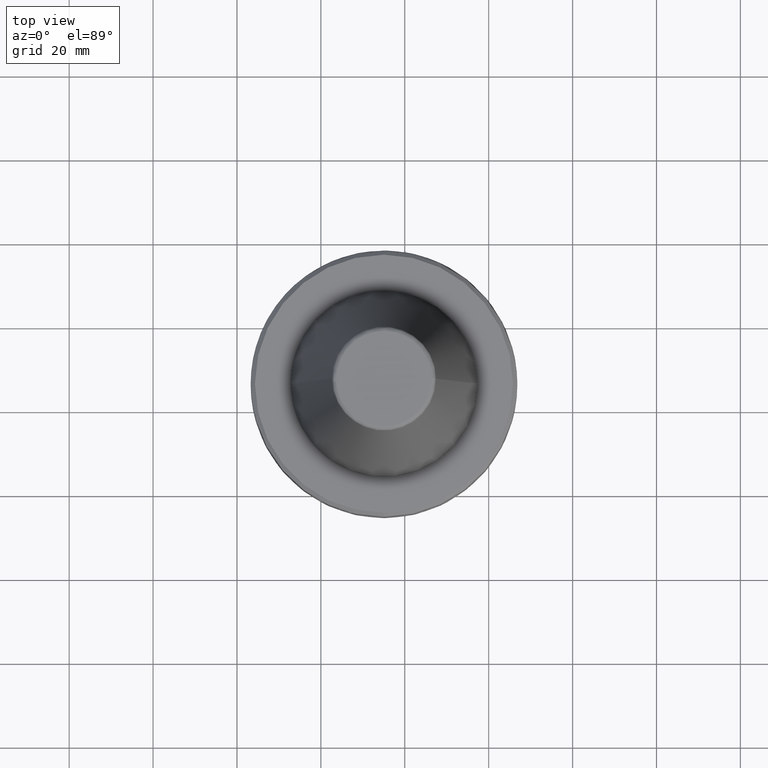
[diagram: clean part render]
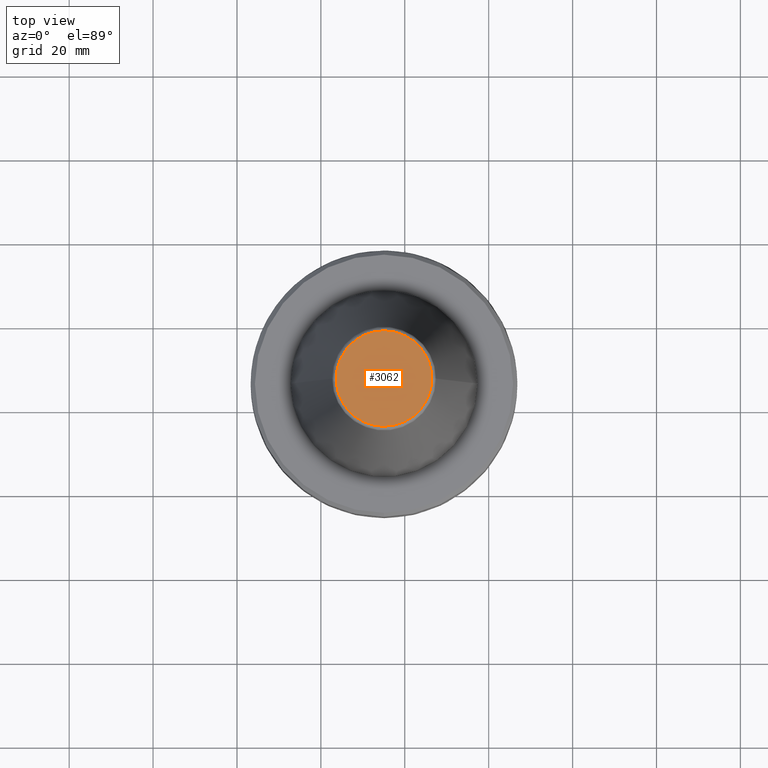
[diagram: same view with one face highlighted and labeled with its STEP entity id]
A machine part, top view. The second image highlights one B-rep face of the part: STEP entity #3062.
In plain terms, the highlighted planar face has unit normal (0, 0, 1).
Its self-contained STEP definition (entity closure, byte-faithful):
#19 = AXIS2_PLACEMENT_3D ( 'NONE', #1203, #502, #577 ) ;
#74 = CARTESIAN_POINT ( 'NONE',  ( 63.66073748632187800, 62.72351220094287800, 152.8231462677679000 ) ) ;
#198 = CARTESIAN_POINT ( 'NONE',  ( 63.66073748734879700, 85.49383738044632300, 152.8231462677678400 ) ) ;
#228 = VERTEX_POINT ( 'NONE', #407 ) ;
#276 = CARTESIAN_POINT ( 'NONE',  ( 63.66073748734879700, 85.49383738044632300, 152.8231462677678400 ) ) ;
#407 = CARTESIAN_POINT ( 'NONE',  ( 86.43106266579839300, 85.49383738044632300, 152.8231462677678400 ) ) ;
#502 = DIRECTION ( 'NONE',  ( 0.0000000000000000000, 0.0000000000000000000, 1.000000000000000000 ) ) ;
#577 = DIRECTION ( 'NONE',  ( 1.000000000000000000, 0.0000000000000000000, -0.0000000000000000000 ) ) ;
#649 = CARTESIAN_POINT ( 'NONE',  ( 86.43106266579839300, 85.49383738044632300, 152.8231462677678400 ) ) ;
#856 = EDGE_LOOP ( 'NONE', ( #2254, #1196 ) ) ;
#898 = PLANE ( 'NONE',  #19 ) ;
#924 = VERTEX_POINT ( 'NONE', #276 ) ;
#940 =( BOUNDED_CURVE ( )  B_SPLINE_CURVE ( 3, ( #1625, #1670, #1496, #1489 ),
 .UNSPECIFIED., .F., .T. ) 
 B_SPLINE_CURVE_WITH_KNOTS ( ( 4, 4 ),
 ( 0.0000000000000000000, 1.000000000000000000 ),
 .UNSPECIFIED. ) 
 CURVE ( )  GEOMETRIC_REPRESENTATION_ITEM ( )  RATIONAL_B_SPLINE_CURVE ( ( 0.9999999999062556500, 0.3333333333020848700, 0.3333333333020848700, 0.9999999999062556500 ) ) 
 REPRESENTATION_ITEM ( '' )  );
#947 = CARTESIAN_POINT ( 'NONE',  ( 86.43106266682535500, 62.72351220094287800, 152.8231462677679000 ) ) ;
#993 = FACE_OUTER_BOUND ( 'NONE', #856, .T. ) ;
#1150 =( BOUNDED_CURVE ( )  B_SPLINE_CURVE ( 3, ( #649, #947, #74, #198 ),
 .UNSPECIFIED., .F., .F. ) 
 B_SPLINE_CURVE_WITH_KNOTS ( ( 4, 4 ),
 ( 0.0000000000000000000, 1.000000000000000000 ),
 .UNSPECIFIED. ) 
 CURVE ( )  GEOMETRIC_REPRESENTATION_ITEM ( )  RATIONAL_B_SPLINE_CURVE ( ( 0.9999999999062556500, 0.3333333333020848700, 0.3333333333020848700, 0.9999999999062556500 ) ) 
 REPRESENTATION_ITEM ( '' )  );
#1185 = EDGE_CURVE ( 'NONE', #228, #924, #1150, .T. ) ;
#1196 = ORIENTED_EDGE ( 'NONE', *, *, #1185, .F. ) ;
#1203 = CARTESIAN_POINT ( 'NONE',  ( 63.52411553557359300, 73.97202823144631600, 152.8231462677678400 ) ) ;
#1477 = EDGE_CURVE ( 'NONE', #924, #228, #940, .T. ) ;
#1489 = CARTESIAN_POINT ( 'NONE',  ( 86.43106266579839300, 85.49383738044632300, 152.8231462677678400 ) ) ;
#1496 = CARTESIAN_POINT ( 'NONE',  ( 86.43106266682535500, 108.2641625599498400, 152.8231462677679000 ) ) ;
#1625 = CARTESIAN_POINT ( 'NONE',  ( 63.66073748734879700, 85.49383738044632300, 152.8231462677678400 ) ) ;
#1670 = CARTESIAN_POINT ( 'NONE',  ( 63.66073748632187800, 108.2641625599498400, 152.8231462677679000 ) ) ;
#2254 = ORIENTED_EDGE ( 'NONE', *, *, #1477, .F. ) ;
#3062 = ADVANCED_FACE ( 'NONE', ( #993 ), #898, .T. ) ;